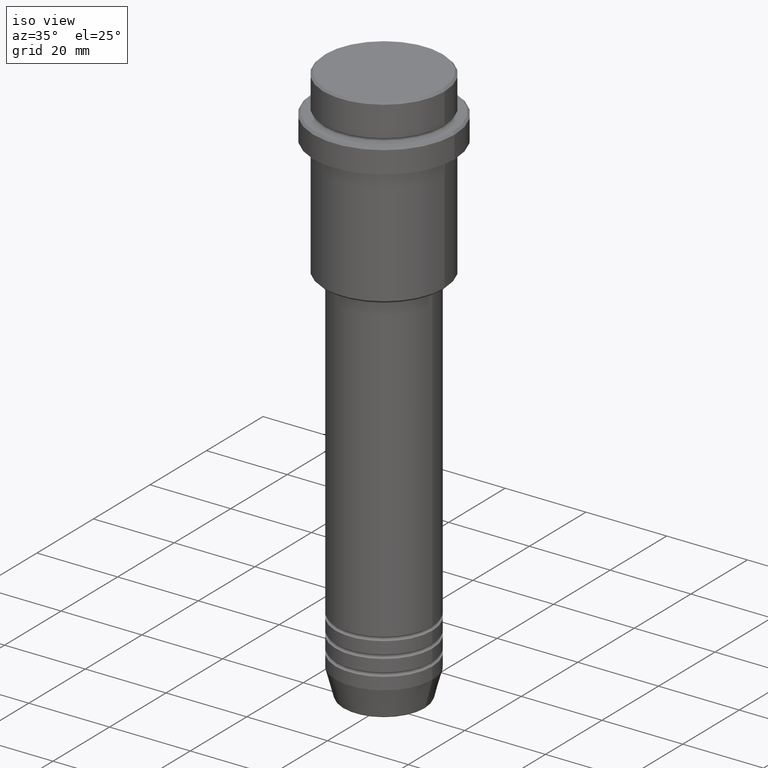
[diagram: clean part render]
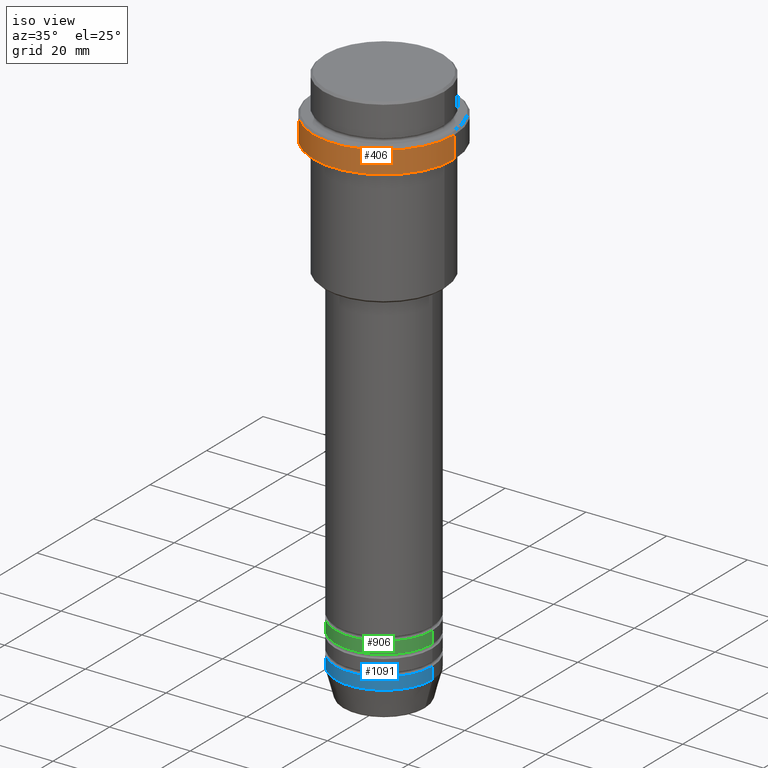
[diagram: same view with three faces highlighted in distinct colors, each labeled with its STEP entity id]
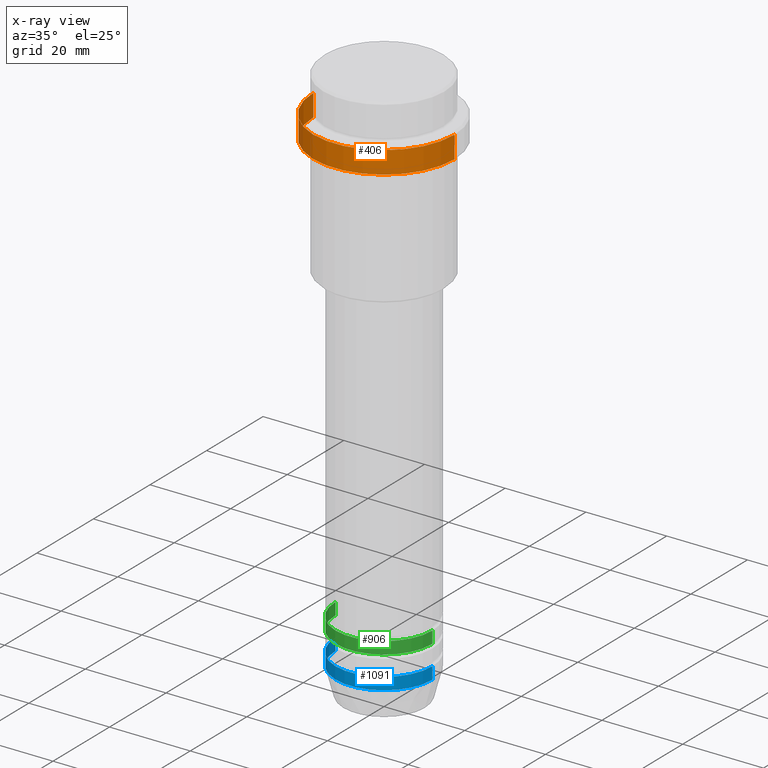
[diagram: x-ray of the same camera — body ghosted, the three highlighted faces saturated]
A machine part, iso view with three faces highlighted in distinct colors.
The next image is the same camera in x-ray (body ghosted, the three faces saturated) — at least one of them is partly hidden behind the body in this view.
Their STEP definitions:

[orange] entity #406 — the highlighted cylindrical surface (partial cylindrical patch) has radius 17.5 mm, axis along (-0, -0, 1).
#141 = CIRCLE ( 'NONE', #1125, 17.50000000000000000 ) ;
#152 = ORIENTED_EDGE ( 'NONE', *, *, #652, .T. ) ;
#198 = LINE ( 'NONE', #602, #724 ) ;
#233 = DIRECTION ( 'NONE',  ( -0.000000000000000000, -0.000000000000000000, 1.000000000000000000 ) ) ;
#242 = CARTESIAN_POINT ( 'NONE',  ( 0.000000000000000000, 0.000000000000000000, -9.500000000000000000 ) ) ;
#248 = CARTESIAN_POINT ( 'NONE',  ( -17.50000000000000000, 2.143131898507868248E-15, -9.500000000000000000 ) ) ;
#257 = CIRCLE ( 'NONE', #552, 17.50000000000000000 ) ;
#290 = EDGE_CURVE ( 'NONE', #541, #519, #257, .T. ) ;
#308 = CARTESIAN_POINT ( 'NONE',  ( 0.000000000000000000, 0.000000000000000000, -15.00000000000000000 ) ) ;
#336 = ORIENTED_EDGE ( 'NONE', *, *, #290, .T. ) ;
#345 = AXIS2_PLACEMENT_3D ( 'NONE', #1406, #233, #871 ) ;
#351 = DIRECTION ( 'NONE',  ( -0.000000000000000000, -0.000000000000000000, 1.000000000000000000 ) ) ;
#402 = ORIENTED_EDGE ( 'NONE', *, *, #555, .T. ) ;
#406 = ADVANCED_FACE ( 'NONE', ( #1412 ), #548, .T. ) ;
#420 = CARTESIAN_POINT ( 'NONE',  ( 17.50000000000000000, 0.000000000000000000, -9.500000000000000000 ) ) ;
#427 = VERTEX_POINT ( 'NONE', #420 ) ;
#434 = CARTESIAN_POINT ( 'NONE',  ( -17.50000000000000000, 2.143131898507868248E-15, 0.000000000000000000 ) ) ;
#508 = VERTEX_POINT ( 'NONE', #248 ) ;
#519 = VERTEX_POINT ( 'NONE', #1113 ) ;
#541 = VERTEX_POINT ( 'NONE', #993 ) ;
#548 = CYLINDRICAL_SURFACE ( 'NONE', #345, 17.50000000000000000 ) ;
#552 = AXIS2_PLACEMENT_3D ( 'NONE', #308, #954, #1261 ) ;
#555 = EDGE_CURVE ( 'NONE', #427, #508, #141, .T. ) ;
#602 = CARTESIAN_POINT ( 'NONE',  ( 17.50000000000000000, 0.000000000000000000, 0.000000000000000000 ) ) ;
#652 = EDGE_CURVE ( 'NONE', #519, #427, #198, .T. ) ;
#681 = DIRECTION ( 'NONE',  ( 1.000000000000000000, 0.000000000000000000, 0.000000000000000000 ) ) ;
#724 = VECTOR ( 'NONE', #1064, 1000.000000000000000 ) ;
#847 = VECTOR ( 'NONE', #351, 1000.000000000000000 ) ;
#871 = DIRECTION ( 'NONE',  ( 1.000000000000000000, 0.000000000000000000, 0.000000000000000000 ) ) ;
#890 = ORIENTED_EDGE ( 'NONE', *, *, #1343, .F. ) ;
#954 = DIRECTION ( 'NONE',  ( -0.000000000000000000, -0.000000000000000000, 1.000000000000000000 ) ) ;
#993 = CARTESIAN_POINT ( 'NONE',  ( -17.50000000000000000, 2.143131898507868248E-15, -15.00000000000000000 ) ) ;
#1064 = DIRECTION ( 'NONE',  ( -0.000000000000000000, -0.000000000000000000, 1.000000000000000000 ) ) ;
#1113 = CARTESIAN_POINT ( 'NONE',  ( 17.50000000000000000, 0.000000000000000000, -15.00000000000000000 ) ) ;
#1122 = EDGE_LOOP ( 'NONE', ( #890, #336, #152, #402 ) ) ;
#1125 = AXIS2_PLACEMENT_3D ( 'NONE', #242, #1141, #681 ) ;
#1141 = DIRECTION ( 'NONE',  ( 0.000000000000000000, 0.000000000000000000, -1.000000000000000000 ) ) ;
#1261 = DIRECTION ( 'NONE',  ( 1.000000000000000000, 0.000000000000000000, 0.000000000000000000 ) ) ;
#1343 = EDGE_CURVE ( 'NONE', #541, #508, #1416, .T. ) ;
#1406 = CARTESIAN_POINT ( 'NONE',  ( 0.000000000000000000, 0.000000000000000000, 0.000000000000000000 ) ) ;
#1412 = FACE_OUTER_BOUND ( 'NONE', #1122, .T. ) ;
#1416 = LINE ( 'NONE', #434, #847 ) ;

[blue] entity #1091 — the highlighted cylindrical surface (partial cylindrical patch) has radius 12 mm, axis along (-0, -0, 1).
#10 = CIRCLE ( 'NONE', #326, 12.00000000000000000 ) ;
#16 = CARTESIAN_POINT ( 'NONE',  ( 12.00000000000000000, 0.000000000000000000, -130.0000000000000000 ) ) ;
#38 = ORIENTED_EDGE ( 'NONE', *, *, #846, .F. ) ;
#48 = DIRECTION ( 'NONE',  ( -0.000000000000000000, -0.000000000000000000, 1.000000000000000000 ) ) ;
#148 = DIRECTION ( 'NONE',  ( 1.000000000000000000, 0.000000000000000000, 0.000000000000000000 ) ) ;
#149 = AXIS2_PLACEMENT_3D ( 'NONE', #787, #1252, #1236 ) ;
#245 = ORIENTED_EDGE ( 'NONE', *, *, #996, .F. ) ;
#254 = CARTESIAN_POINT ( 'NONE',  ( 0.000000000000000000, 0.000000000000000000, -133.0000000000000000 ) ) ;
#301 = DIRECTION ( 'NONE',  ( -0.000000000000000000, -0.000000000000000000, 1.000000000000000000 ) ) ;
#311 = CARTESIAN_POINT ( 'NONE',  ( 0.000000000000000000, 0.000000000000000000, -130.0000000000000000 ) ) ;
#326 = AXIS2_PLACEMENT_3D ( 'NONE', #311, #1183, #1188 ) ;
#379 = ORIENTED_EDGE ( 'NONE', *, *, #1107, .T. ) ;
#414 = CARTESIAN_POINT ( 'NONE',  ( 12.00000000000000000, 0.000000000000000000, -133.0000000000000000 ) ) ;
#433 = VERTEX_POINT ( 'NONE', #16 ) ;
#561 = VERTEX_POINT ( 'NONE', #1129 ) ;
#570 = CARTESIAN_POINT ( 'NONE',  ( -12.00000000000000000, 1.469576158976823947E-15, -130.0000000000000000 ) ) ;
#618 = VECTOR ( 'NONE', #301, 1000.000000000000000 ) ;
#642 = EDGE_LOOP ( 'NONE', ( #245, #379, #969, #38 ) ) ;
#677 = DIRECTION ( 'NONE',  ( -0.000000000000000000, -0.000000000000000000, 1.000000000000000000 ) ) ;
#714 = CARTESIAN_POINT ( 'NONE',  ( 12.00000000000000000, 0.000000000000000000, 0.000000000000000000 ) ) ;
#787 = CARTESIAN_POINT ( 'NONE',  ( 0.000000000000000000, 0.000000000000000000, 0.000000000000000000 ) ) ;
#846 = EDGE_CURVE ( 'NONE', #898, #433, #10, .T. ) ;
#898 = VERTEX_POINT ( 'NONE', #570 ) ;
#965 = LINE ( 'NONE', #714, #618 ) ;
#969 = ORIENTED_EDGE ( 'NONE', *, *, #1189, .T. ) ;
#996 = EDGE_CURVE ( 'NONE', #561, #898, #1348, .T. ) ;
#1028 = VECTOR ( 'NONE', #48, 1000.000000000000000 ) ;
#1091 = ADVANCED_FACE ( 'NONE', ( #1355 ), #1374, .T. ) ;
#1105 = CIRCLE ( 'NONE', #1288, 12.00000000000000000 ) ;
#1107 = EDGE_CURVE ( 'NONE', #561, #1167, #1105, .T. ) ;
#1129 = CARTESIAN_POINT ( 'NONE',  ( -12.00000000000000000, 1.469576158976823947E-15, -133.0000000000000000 ) ) ;
#1146 = CARTESIAN_POINT ( 'NONE',  ( -12.00000000000000000, 1.469576158976823947E-15, 0.000000000000000000 ) ) ;
#1167 = VERTEX_POINT ( 'NONE', #414 ) ;
#1183 = DIRECTION ( 'NONE',  ( -0.000000000000000000, -0.000000000000000000, 1.000000000000000000 ) ) ;
#1188 = DIRECTION ( 'NONE',  ( 1.000000000000000000, 0.000000000000000000, 0.000000000000000000 ) ) ;
#1189 = EDGE_CURVE ( 'NONE', #1167, #433, #965, .T. ) ;
#1236 = DIRECTION ( 'NONE',  ( 1.000000000000000000, 0.000000000000000000, 0.000000000000000000 ) ) ;
#1252 = DIRECTION ( 'NONE',  ( -0.000000000000000000, -0.000000000000000000, 1.000000000000000000 ) ) ;
#1288 = AXIS2_PLACEMENT_3D ( 'NONE', #254, #677, #148 ) ;
#1348 = LINE ( 'NONE', #1146, #1028 ) ;
#1355 = FACE_OUTER_BOUND ( 'NONE', #642, .T. ) ;
#1374 = CYLINDRICAL_SURFACE ( 'NONE', #149, 12.00000000000000000 ) ;

[green] entity #906 — the highlighted cylindrical surface (partial cylindrical patch) has radius 12 mm, axis along (-0, -0, 1).
#21 = CARTESIAN_POINT ( 'NONE',  ( 12.00000000000000000, 0.000000000000000000, -121.9999999999999005 ) ) ;
#26 = EDGE_CURVE ( 'NONE', #621, #1152, #981, .T. ) ;
#37 = CARTESIAN_POINT ( 'NONE',  ( 0.000000000000000000, 0.000000000000000000, -121.9999999999999005 ) ) ;
#111 = CARTESIAN_POINT ( 'NONE',  ( 0.000000000000000000, 0.000000000000000000, 0.000000000000000000 ) ) ;
#127 = CARTESIAN_POINT ( 'NONE',  ( -12.00000000000000000, 1.469576158976823947E-15, -121.9999999999999005 ) ) ;
#160 = ORIENTED_EDGE ( 'NONE', *, *, #611, .F. ) ;
#215 = AXIS2_PLACEMENT_3D ( 'NONE', #1102, #877, #738 ) ;
#229 = CARTESIAN_POINT ( 'NONE',  ( -12.00000000000000000, 1.469576158976823947E-15, 0.000000000000000000 ) ) ;
#353 = CARTESIAN_POINT ( 'NONE',  ( -12.00000000000000000, 1.469576158976823947E-15, -124.9999999999999005 ) ) ;
#416 = CIRCLE ( 'NONE', #1333, 12.00000000000000000 ) ;
#418 = FACE_OUTER_BOUND ( 'NONE', #1319, .T. ) ;
#457 = DIRECTION ( 'NONE',  ( -0.000000000000000000, -0.000000000000000000, 1.000000000000000000 ) ) ;
#468 = DIRECTION ( 'NONE',  ( -0.000000000000000000, -0.000000000000000000, 1.000000000000000000 ) ) ;
#488 = VERTEX_POINT ( 'NONE', #127 ) ;
#511 = VERTEX_POINT ( 'NONE', #21 ) ;
#547 = DIRECTION ( 'NONE',  ( 1.000000000000000000, 0.000000000000000000, 0.000000000000000000 ) ) ;
#589 = ORIENTED_EDGE ( 'NONE', *, *, #622, .T. ) ;
#611 = EDGE_CURVE ( 'NONE', #488, #511, #416, .T. ) ;
#621 = VERTEX_POINT ( 'NONE', #353 ) ;
#622 = EDGE_CURVE ( 'NONE', #1152, #511, #800, .T. ) ;
#631 = CARTESIAN_POINT ( 'NONE',  ( 12.00000000000000000, 0.000000000000000000, -124.9999999999999005 ) ) ;
#639 = VECTOR ( 'NONE', #468, 1000.000000000000000 ) ;
#738 = DIRECTION ( 'NONE',  ( 1.000000000000000000, 0.000000000000000000, 0.000000000000000000 ) ) ;
#773 = AXIS2_PLACEMENT_3D ( 'NONE', #111, #1194, #547 ) ;
#781 = CARTESIAN_POINT ( 'NONE',  ( 12.00000000000000000, 0.000000000000000000, 0.000000000000000000 ) ) ;
#800 = LINE ( 'NONE', #781, #639 ) ;
#877 = DIRECTION ( 'NONE',  ( -0.000000000000000000, -0.000000000000000000, 1.000000000000000000 ) ) ;
#893 = DIRECTION ( 'NONE',  ( 1.000000000000000000, 0.000000000000000000, 0.000000000000000000 ) ) ;
#906 = ADVANCED_FACE ( 'NONE', ( #418 ), #1092, .T. ) ;
#951 = ORIENTED_EDGE ( 'NONE', *, *, #1363, .F. ) ;
#977 = DIRECTION ( 'NONE',  ( -0.000000000000000000, -0.000000000000000000, 1.000000000000000000 ) ) ;
#981 = CIRCLE ( 'NONE', #215, 12.00000000000000000 ) ;
#1092 = CYLINDRICAL_SURFACE ( 'NONE', #773, 12.00000000000000000 ) ;
#1102 = CARTESIAN_POINT ( 'NONE',  ( 0.000000000000000000, 0.000000000000000000, -124.9999999999999005 ) ) ;
#1103 = LINE ( 'NONE', #229, #1316 ) ;
#1148 = ORIENTED_EDGE ( 'NONE', *, *, #26, .T. ) ;
#1152 = VERTEX_POINT ( 'NONE', #631 ) ;
#1194 = DIRECTION ( 'NONE',  ( -0.000000000000000000, -0.000000000000000000, 1.000000000000000000 ) ) ;
#1316 = VECTOR ( 'NONE', #977, 1000.000000000000000 ) ;
#1319 = EDGE_LOOP ( 'NONE', ( #951, #1148, #589, #160 ) ) ;
#1333 = AXIS2_PLACEMENT_3D ( 'NONE', #37, #457, #893 ) ;
#1363 = EDGE_CURVE ( 'NONE', #621, #488, #1103, .T. ) ;